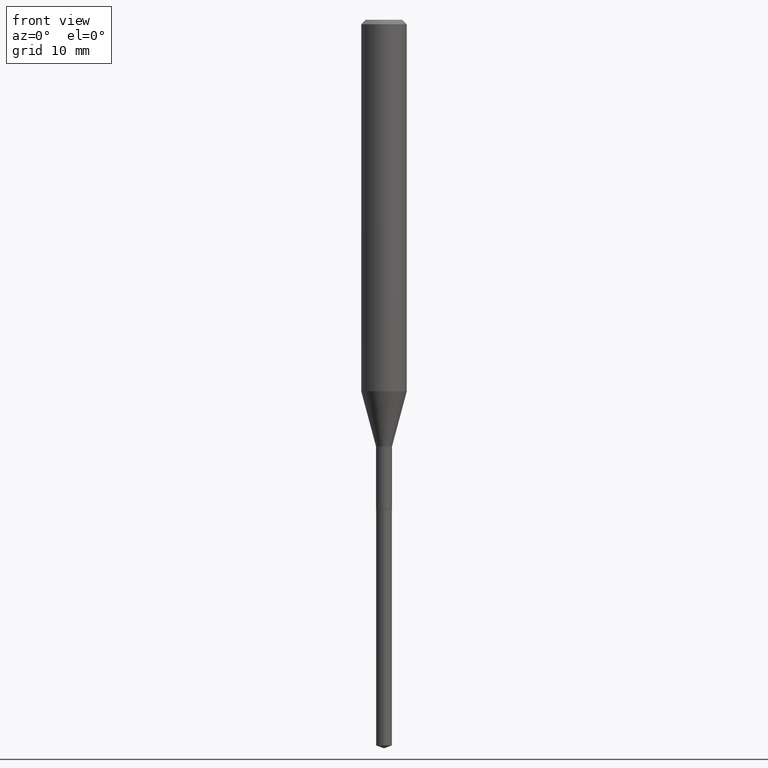
[diagram: clean part render]
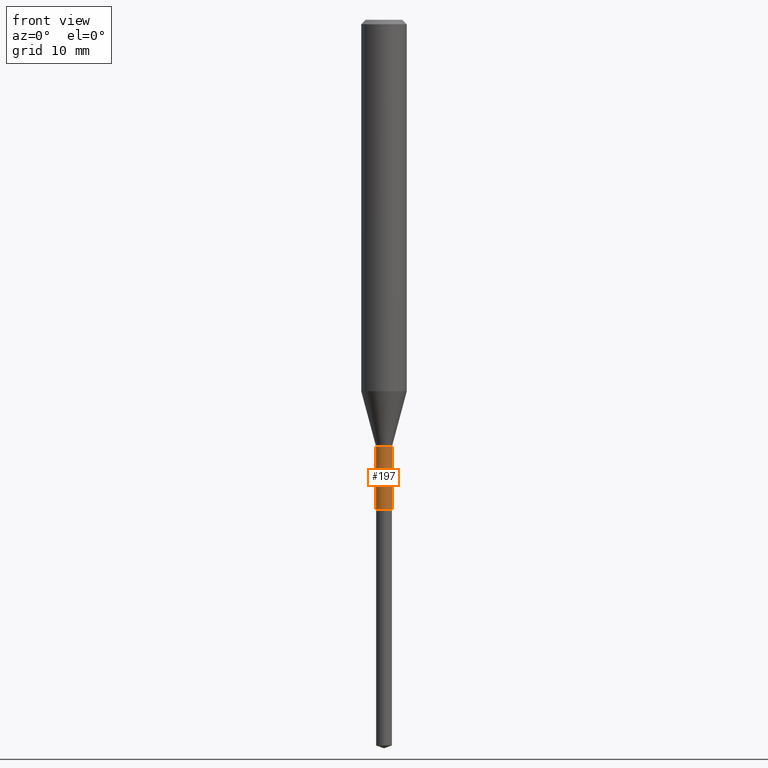
[diagram: same view with one face highlighted and labeled with its STEP entity id]
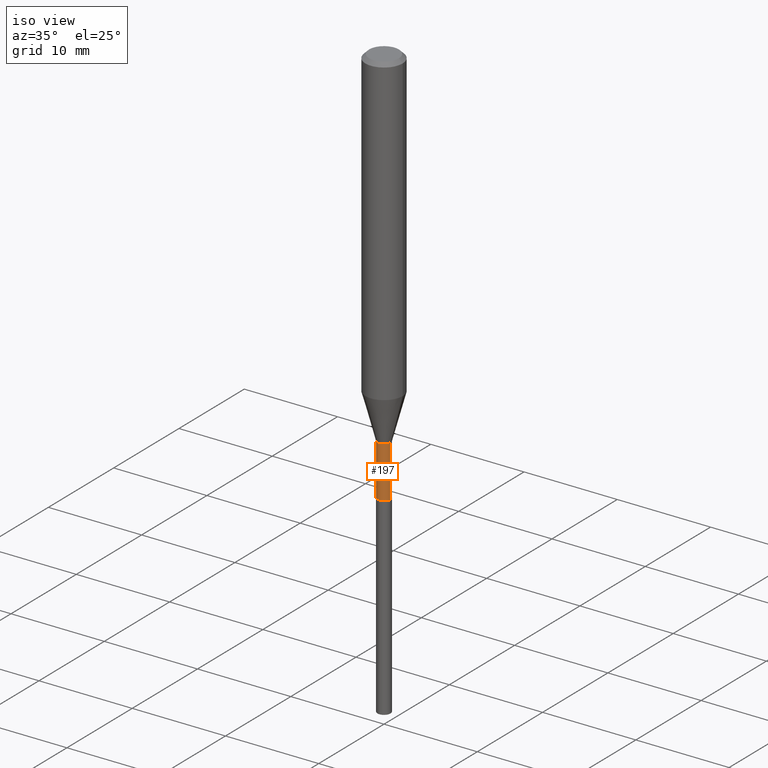
[diagram: same view with one face highlighted and labeled with its STEP entity id]
A machine part, front view. The second image highlights one B-rep face of the part: STEP entity #197.
A second angle (iso view) of the same face is appended — the face is thin or edge-on in the first view.
In plain terms, the highlighted cylindrical surface (edge-blend (fillet) strip) has radius 0.6998 mm, axis along (-0, 0, 1).
Its self-contained STEP definition (entity closure, byte-faithful):
#5 = CIRCLE ( 'NONE', #244, 0.02754999999999999116 ) ;
#13 = DIRECTION ( 'NONE',  ( 1.000000000000000000, -6.982962677686258822E-15, 0.000000000000000000 ) ) ;
#34 = VECTOR ( 'NONE', #243, 39.37007874015748143 ) ;
#43 = CARTESIAN_POINT ( 'NONE',  ( -0.02754999999999998075, 1.957545237019074645E-16, -1.355166617365225689E-30 ) ) ;
#57 = CYLINDRICAL_SURFACE ( 'NONE', #363, 0.02754999999999998075 ) ;
#75 = VERTEX_POINT ( 'NONE', #161 ) ;
#101 = VECTOR ( 'NONE', #114, 39.37007874015748143 ) ;
#103 = ORIENTED_EDGE ( 'NONE', *, *, #452, .T. ) ;
#114 = DIRECTION ( 'NONE',  ( -2.445468806185136877E-29, 3.491481338843145188E-15, 1.000000000000000000 ) ) ;
#127 = CARTESIAN_POINT ( 'NONE',  ( 3.609511957929261074E-29, -5.153426456132482850E-15, -1.475999999999999757 ) ) ;
#128 = VERTEX_POINT ( 'NONE', #176 ) ;
#147 = EDGE_LOOP ( 'NONE', ( #378, #400, #103, #478 ) ) ;
#156 = DIRECTION ( 'NONE',  ( 1.000000000000000000, -6.982962677686266711E-15, 4.876176775795936353E-29 ) ) ;
#161 = CARTESIAN_POINT ( 'NONE',  ( -0.02754999999999998769, -5.335450213293403869E-15, -1.692399999999999904 ) ) ;
#176 = CARTESIAN_POINT ( 'NONE',  ( -0.02754999999999997035, -5.335450213293403869E-15, -1.475999999999999757 ) ) ;
#197 = ADVANCED_FACE ( 'NONE', ( #396 ), #57, .T. ) ;
#203 = DIRECTION ( 'NONE',  ( -2.445468806185136597E-29, 3.491481338843145583E-15, 1.000000000000000000 ) ) ;
#237 = EDGE_CURVE ( 'NONE', #75, #379, #5, .T. ) ;
#243 = DIRECTION ( 'NONE',  ( -2.445468806185136877E-29, 3.491481338843145188E-15, 1.000000000000000000 ) ) ;
#244 = AXIS2_PLACEMENT_3D ( 'NONE', #284, #358, #13 ) ;
#282 = CARTESIAN_POINT ( 'NONE',  ( 0.000000000000000000, 0.000000000000000000, 0.000000000000000000 ) ) ;
#284 = CARTESIAN_POINT ( 'NONE',  ( 4.138711407587725556E-29, -5.908983017858139571E-15, -1.692399999999999904 ) ) ;
#293 = DIRECTION ( 'NONE',  ( -2.445468806185136597E-29, 3.491481338843145583E-15, 1.000000000000000000 ) ) ;
#315 = AXIS2_PLACEMENT_3D ( 'NONE', #127, #293, #439 ) ;
#318 = CARTESIAN_POINT ( 'NONE',  ( 0.02754999999999998075, -1.923806217702565219E-16, 1.343386701731779458E-30 ) ) ;
#353 = LINE ( 'NONE', #318, #34 ) ;
#358 = DIRECTION ( 'NONE',  ( -2.445468806185136597E-29, 3.491481338843145583E-15, 1.000000000000000000 ) ) ;
#362 = LINE ( 'NONE', #43, #101 ) ;
#363 = AXIS2_PLACEMENT_3D ( 'NONE', #282, #203, #156 ) ;
#378 = ORIENTED_EDGE ( 'NONE', *, *, #412, .F. ) ;
#379 = VERTEX_POINT ( 'NONE', #454 ) ;
#396 = FACE_OUTER_BOUND ( 'NONE', #147, .T. ) ;
#400 = ORIENTED_EDGE ( 'NONE', *, *, #237, .T. ) ;
#402 = CARTESIAN_POINT ( 'NONE',  ( 0.02754999999999997035, -5.345807077902738854E-15, -1.475999999999999757 ) ) ;
#406 = VERTEX_POINT ( 'NONE', #402 ) ;
#412 = EDGE_CURVE ( 'NONE', #75, #128, #362, .T. ) ;
#436 = CIRCLE ( 'NONE', #315, 0.02754999999999997035 ) ;
#439 = DIRECTION ( 'NONE',  ( 1.000000000000000000, -6.982962677686264344E-15, 0.000000000000000000 ) ) ;
#452 = EDGE_CURVE ( 'NONE', #379, #406, #353, .T. ) ;
#454 = CARTESIAN_POINT ( 'NONE',  ( 0.02754999999999999116, -6.101363639628395575E-15, -1.692399999999999904 ) ) ;
#467 = EDGE_CURVE ( 'NONE', #128, #406, #436, .T. ) ;
#478 = ORIENTED_EDGE ( 'NONE', *, *, #467, .F. ) ;